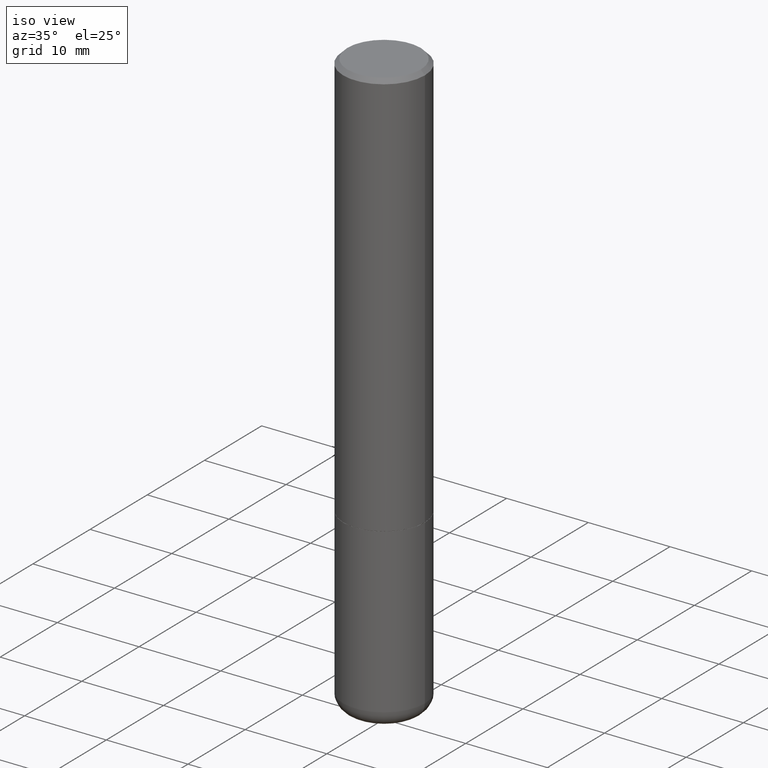
[diagram: clean part render]
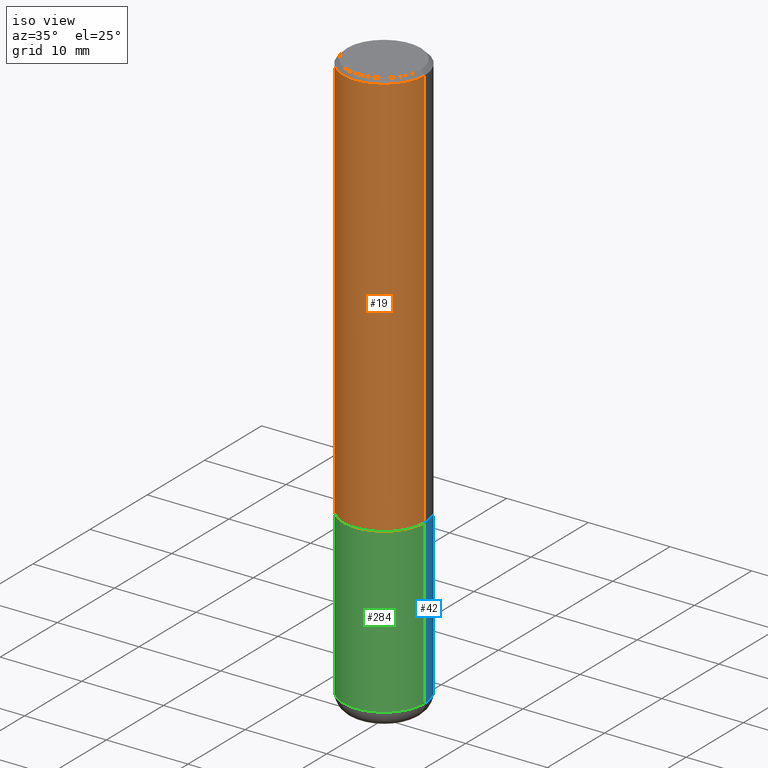
[diagram: same view with three faces highlighted in distinct colors, each labeled with its STEP entity id]
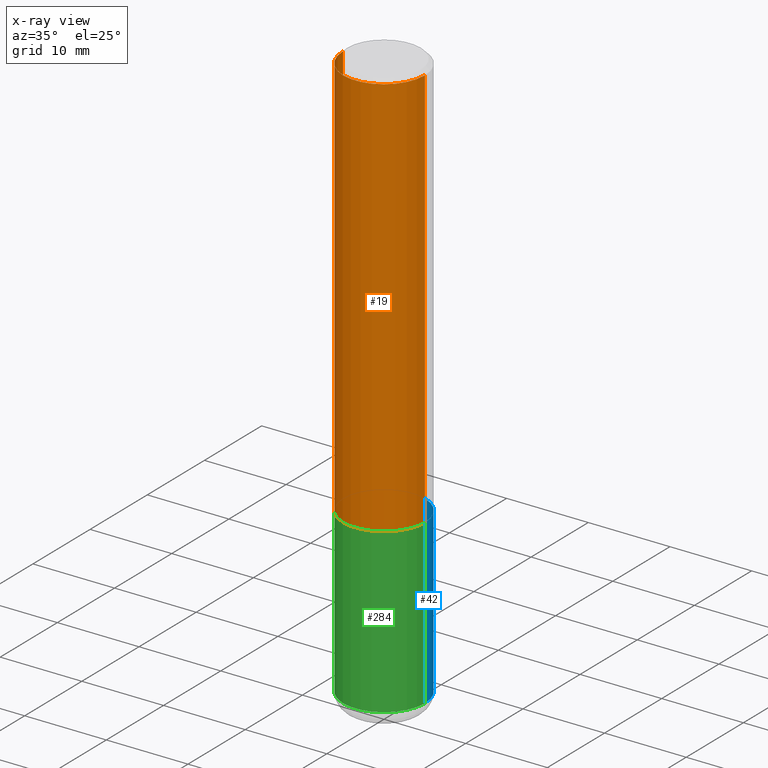
[diagram: x-ray of the same camera — body ghosted, the three highlighted faces saturated]
A machine part, iso view with three faces highlighted in distinct colors.
The next image is the same camera in x-ray (body ghosted, the three faces saturated) — at least one of them is partly hidden behind the body in this view.
Their STEP definitions:

[orange] entity #19 — the highlighted cylindrical surface (partial cylindrical patch) has radius 5 mm, axis along (-0, 0, 1).
#1 = DIRECTION ( 'NONE',  ( 1.000000000000000000, -6.982962677686266711E-15, 4.876176775795935793E-29 ) ) ;
#4 = VERTEX_POINT ( 'NONE', #31 ) ;
#14 = EDGE_CURVE ( 'NONE', #59, #4, #288, .T. ) ;
#19 = ADVANCED_FACE ( 'NONE', ( #301 ), #258, .T. ) ;
#23 = VERTEX_POINT ( 'NONE', #319 ) ;
#31 = CARTESIAN_POINT ( 'NONE',  ( 0.1968500000000000527, -1.420318657638189516E-15, -0.02000000000000004205 ) ) ;
#48 = AXIS2_PLACEMENT_3D ( 'NONE', #304, #326, #328 ) ;
#51 = ORIENTED_EDGE ( 'NONE', *, *, #14, .T. ) ;
#59 = VERTEX_POINT ( 'NONE', #353 ) ;
#66 = CARTESIAN_POINT ( 'NONE',  ( 0.000000000000000000, 0.000000000000000000, 0.000000000000000000 ) ) ;
#74 = DIRECTION ( 'NONE',  ( 1.000000000000000000, -6.982962677686265922E-15, 0.000000000000000000 ) ) ;
#94 = DIRECTION ( 'NONE',  ( -2.445468806185136877E-29, 3.491481338843145188E-15, 1.000000000000000000 ) ) ;
#98 = DIRECTION ( 'NONE',  ( -2.445468806185136877E-29, 3.491481338843145188E-15, 1.000000000000000000 ) ) ;
#105 = CARTESIAN_POINT ( 'NONE',  ( 4.811459876169256232E-29, -6.869489534173888700E-15, -1.967500000000000027 ) ) ;
#112 = EDGE_CURVE ( 'NONE', #23, #59, #201, .T. ) ;
#130 = CARTESIAN_POINT ( 'NONE',  ( -0.1968500000000000527, 1.304766576325678902E-15, -0.02000000000000004205 ) ) ;
#166 = AXIS2_PLACEMENT_3D ( 'NONE', #66, #290, #1 ) ;
#198 = EDGE_CURVE ( 'NONE', #208, #4, #389, .T. ) ;
#201 = CIRCLE ( 'NONE', #238, 0.1968500000000002192 ) ;
#208 = VERTEX_POINT ( 'NONE', #130 ) ;
#210 = ORIENTED_EDGE ( 'NONE', *, *, #242, .F. ) ;
#223 = CARTESIAN_POINT ( 'NONE',  ( 0.1968500000000001082, -1.374596203102542397E-15, 9.598753983154305062E-30 ) ) ;
#238 = AXIS2_PLACEMENT_3D ( 'NONE', #105, #360, #74 ) ;
#242 = EDGE_CURVE ( 'NONE', #23, #208, #388, .T. ) ;
#243 = VECTOR ( 'NONE', #98, 39.37007874015748143 ) ;
#258 = CYLINDRICAL_SURFACE ( 'NONE', #166, 0.1968500000000001082 ) ;
#285 = ORIENTED_EDGE ( 'NONE', *, *, #112, .T. ) ;
#288 = LINE ( 'NONE', #223, #329 ) ;
#290 = DIRECTION ( 'NONE',  ( -2.445468806185136597E-29, 3.491481338843145583E-15, 1.000000000000000000 ) ) ;
#301 = FACE_OUTER_BOUND ( 'NONE', #370, .T. ) ;
#304 = CARTESIAN_POINT ( 'NONE',  ( 4.890937612370283668E-31, -6.982962677686305168E-17, -0.02000000000000004205 ) ) ;
#319 = CARTESIAN_POINT ( 'NONE',  ( -0.1968500000000002192, -2.070956205131615845E-15, -1.967500000000000027 ) ) ;
#326 = DIRECTION ( 'NONE',  ( -2.445468806185136597E-29, 3.491481338843145583E-15, 1.000000000000000000 ) ) ;
#328 = DIRECTION ( 'NONE',  ( 1.000000000000000000, -6.982962677686266711E-15, 0.000000000000000000 ) ) ;
#329 = VECTOR ( 'NONE', #94, 39.37007874015748143 ) ;
#343 = ORIENTED_EDGE ( 'NONE', *, *, #198, .F. ) ;
#353 = CARTESIAN_POINT ( 'NONE',  ( 0.1968500000000002192, -8.244085737276431886E-15, -1.967500000000000027 ) ) ;
#360 = DIRECTION ( 'NONE',  ( -2.445468806185136597E-29, 3.491481338843145583E-15, 1.000000000000000000 ) ) ;
#370 = EDGE_LOOP ( 'NONE', ( #210, #285, #51, #343 ) ) ;
#388 = LINE ( 'NONE', #391, #243 ) ;
#389 = CIRCLE ( 'NONE', #48, 0.1968500000000000527 ) ;
#391 = CARTESIAN_POINT ( 'NONE',  ( -0.1968500000000001082, 1.398703375343757985E-15, -9.682923725166787881E-30 ) ) ;

[blue] entity #42 — the highlighted cylindrical surface (partial cylindrical patch) has radius 5 mm, axis along (-0, 0, 1).
#5 = CARTESIAN_POINT ( 'NONE',  ( 0.1968500000000000250, -1.374596203102541608E-15, 9.598753983154300858E-30 ) ) ;
#8 = EDGE_CURVE ( 'NONE', #324, #47, #185, .T. ) ;
#32 = CARTESIAN_POINT ( 'NONE',  ( -0.1968500000000001082, -8.223470046374067391E-15, -2.755900000000000016 ) ) ;
#33 = ORIENTED_EDGE ( 'NONE', *, *, #165, .T. ) ;
#42 = ADVANCED_FACE ( 'NONE', ( #218 ), #63, .T. ) ;
#47 = VERTEX_POINT ( 'NONE', #416 ) ;
#58 = AXIS2_PLACEMENT_3D ( 'NONE', #332, #195, #262 ) ;
#62 = ORIENTED_EDGE ( 'NONE', *, *, #136, .F. ) ;
#63 = CYLINDRICAL_SURFACE ( 'NONE', #397, 0.1968500000000000250 ) ;
#90 = AXIS2_PLACEMENT_3D ( 'NONE', #226, #127, #193 ) ;
#92 = VECTOR ( 'NONE', #132, 39.37007874015748143 ) ;
#101 = CARTESIAN_POINT ( 'NONE',  ( 0.1968500000000001082, -1.099676962482036600E-14, -2.755900000000000016 ) ) ;
#123 = VERTEX_POINT ( 'NONE', #32 ) ;
#127 = DIRECTION ( 'NONE',  ( -2.445468806185136597E-29, 3.491481338843145583E-15, 1.000000000000000000 ) ) ;
#132 = DIRECTION ( 'NONE',  ( -2.445468806185136877E-29, 3.491481338843145188E-15, 1.000000000000000000 ) ) ;
#135 = LINE ( 'NONE', #5, #92 ) ;
#136 = EDGE_CURVE ( 'NONE', #177, #324, #135, .T. ) ;
#165 = EDGE_CURVE ( 'NONE', #123, #47, #187, .T. ) ;
#177 = VERTEX_POINT ( 'NONE', #101 ) ;
#180 = EDGE_LOOP ( 'NONE', ( #277, #33, #245, #62 ) ) ;
#184 = CARTESIAN_POINT ( 'NONE',  ( 0.000000000000000000, 0.000000000000000000, 0.000000000000000000 ) ) ;
#185 = CIRCLE ( 'NONE', #90, 0.1968500000000000250 ) ;
#187 = LINE ( 'NONE', #302, #298 ) ;
#193 = DIRECTION ( 'NONE',  ( 1.000000000000000000, -6.982962677686267499E-15, 0.000000000000000000 ) ) ;
#195 = DIRECTION ( 'NONE',  ( -2.445468806185136597E-29, 3.491481338843145583E-15, 1.000000000000000000 ) ) ;
#199 = CARTESIAN_POINT ( 'NONE',  ( 0.1968500000000000250, -8.247577218615273316E-15, -1.968500000000000139 ) ) ;
#218 = FACE_OUTER_BOUND ( 'NONE', #180, .T. ) ;
#226 = CARTESIAN_POINT ( 'NONE',  ( 4.813905344975441835E-29, -6.872981015512731707E-15, -1.968500000000000139 ) ) ;
#227 = DIRECTION ( 'NONE',  ( -2.445468806185136877E-29, 3.491481338843145188E-15, 1.000000000000000000 ) ) ;
#235 = EDGE_CURVE ( 'NONE', #177, #123, #287, .T. ) ;
#245 = ORIENTED_EDGE ( 'NONE', *, *, #8, .F. ) ;
#262 = DIRECTION ( 'NONE',  ( 1.000000000000000000, -6.982962677686267499E-15, 0.000000000000000000 ) ) ;
#277 = ORIENTED_EDGE ( 'NONE', *, *, #235, .T. ) ;
#287 = CIRCLE ( 'NONE', #58, 0.1968500000000000250 ) ;
#298 = VECTOR ( 'NONE', #227, 39.37007874015748143 ) ;
#302 = CARTESIAN_POINT ( 'NONE',  ( -0.1968500000000000250, 1.398703375343757393E-15, -9.682923725166783677E-30 ) ) ;
#322 = DIRECTION ( 'NONE',  ( 1.000000000000000000, -6.982962677686265922E-15, 4.876176775795935793E-29 ) ) ;
#324 = VERTEX_POINT ( 'NONE', #199 ) ;
#327 = DIRECTION ( 'NONE',  ( -2.445468806185136597E-29, 3.491481338843145583E-15, 1.000000000000000000 ) ) ;
#332 = CARTESIAN_POINT ( 'NONE',  ( 6.739467482965618232E-29, -9.622173421717824390E-15, -2.755900000000000016 ) ) ;
#397 = AXIS2_PLACEMENT_3D ( 'NONE', #184, #327, #322 ) ;
#416 = CARTESIAN_POINT ( 'NONE',  ( -0.1968500000000000250, -6.848873843271521050E-15, -1.968500000000000139 ) ) ;

[green] entity #284 — the highlighted cylindrical surface (partial cylindrical patch) has radius 5 mm, axis along (-0, 0, 1).
#2 = DIRECTION ( 'NONE',  ( -2.445468806185136597E-29, 3.491481338843145583E-15, 1.000000000000000000 ) ) ;
#5 = CARTESIAN_POINT ( 'NONE',  ( 0.1968500000000000250, -1.374596203102541608E-15, 9.598753983154300858E-30 ) ) ;
#32 = CARTESIAN_POINT ( 'NONE',  ( -0.1968500000000001082, -8.223470046374067391E-15, -2.755900000000000016 ) ) ;
#47 = VERTEX_POINT ( 'NONE', #416 ) ;
#67 = DIRECTION ( 'NONE',  ( 1.000000000000000000, -6.982962677686265922E-15, 4.876176775795935793E-29 ) ) ;
#76 = CARTESIAN_POINT ( 'NONE',  ( 6.739467482965618232E-29, -9.622173421717824390E-15, -2.755900000000000016 ) ) ;
#77 = AXIS2_PLACEMENT_3D ( 'NONE', #299, #222, #418 ) ;
#86 = ORIENTED_EDGE ( 'NONE', *, *, #128, .F. ) ;
#92 = VECTOR ( 'NONE', #132, 39.37007874015748143 ) ;
#101 = CARTESIAN_POINT ( 'NONE',  ( 0.1968500000000001082, -1.099676962482036600E-14, -2.755900000000000016 ) ) ;
#106 = FACE_OUTER_BOUND ( 'NONE', #384, .T. ) ;
#110 = AXIS2_PLACEMENT_3D ( 'NONE', #76, #170, #169 ) ;
#123 = VERTEX_POINT ( 'NONE', #32 ) ;
#128 = EDGE_CURVE ( 'NONE', #47, #324, #380, .T. ) ;
#132 = DIRECTION ( 'NONE',  ( -2.445468806185136877E-29, 3.491481338843145188E-15, 1.000000000000000000 ) ) ;
#133 = AXIS2_PLACEMENT_3D ( 'NONE', #362, #2, #67 ) ;
#135 = LINE ( 'NONE', #5, #92 ) ;
#136 = EDGE_CURVE ( 'NONE', #177, #324, #135, .T. ) ;
#147 = ORIENTED_EDGE ( 'NONE', *, *, #165, .F. ) ;
#165 = EDGE_CURVE ( 'NONE', #123, #47, #187, .T. ) ;
#169 = DIRECTION ( 'NONE',  ( 1.000000000000000000, -6.982962677686267499E-15, 0.000000000000000000 ) ) ;
#170 = DIRECTION ( 'NONE',  ( -2.445468806185136597E-29, 3.491481338843145583E-15, 1.000000000000000000 ) ) ;
#177 = VERTEX_POINT ( 'NONE', #101 ) ;
#187 = LINE ( 'NONE', #302, #298 ) ;
#199 = CARTESIAN_POINT ( 'NONE',  ( 0.1968500000000000250, -8.247577218615273316E-15, -1.968500000000000139 ) ) ;
#206 = CIRCLE ( 'NONE', #110, 0.1968500000000000250 ) ;
#222 = DIRECTION ( 'NONE',  ( -2.445468806185136597E-29, 3.491481338843145583E-15, 1.000000000000000000 ) ) ;
#227 = DIRECTION ( 'NONE',  ( -2.445468806185136877E-29, 3.491481338843145188E-15, 1.000000000000000000 ) ) ;
#233 = CYLINDRICAL_SURFACE ( 'NONE', #133, 0.1968500000000000250 ) ;
#274 = ORIENTED_EDGE ( 'NONE', *, *, #336, .T. ) ;
#284 = ADVANCED_FACE ( 'NONE', ( #106 ), #233, .T. ) ;
#298 = VECTOR ( 'NONE', #227, 39.37007874015748143 ) ;
#299 = CARTESIAN_POINT ( 'NONE',  ( 4.813905344975441835E-29, -6.872981015512731707E-15, -1.968500000000000139 ) ) ;
#302 = CARTESIAN_POINT ( 'NONE',  ( -0.1968500000000000250, 1.398703375343757393E-15, -9.682923725166783677E-30 ) ) ;
#324 = VERTEX_POINT ( 'NONE', #199 ) ;
#336 = EDGE_CURVE ( 'NONE', #123, #177, #206, .T. ) ;
#351 = ORIENTED_EDGE ( 'NONE', *, *, #136, .T. ) ;
#362 = CARTESIAN_POINT ( 'NONE',  ( 0.000000000000000000, 0.000000000000000000, 0.000000000000000000 ) ) ;
#380 = CIRCLE ( 'NONE', #77, 0.1968500000000000250 ) ;
#384 = EDGE_LOOP ( 'NONE', ( #147, #274, #351, #86 ) ) ;
#416 = CARTESIAN_POINT ( 'NONE',  ( -0.1968500000000000250, -6.848873843271521050E-15, -1.968500000000000139 ) ) ;
#418 = DIRECTION ( 'NONE',  ( 1.000000000000000000, -6.982962677686267499E-15, 0.000000000000000000 ) ) ;